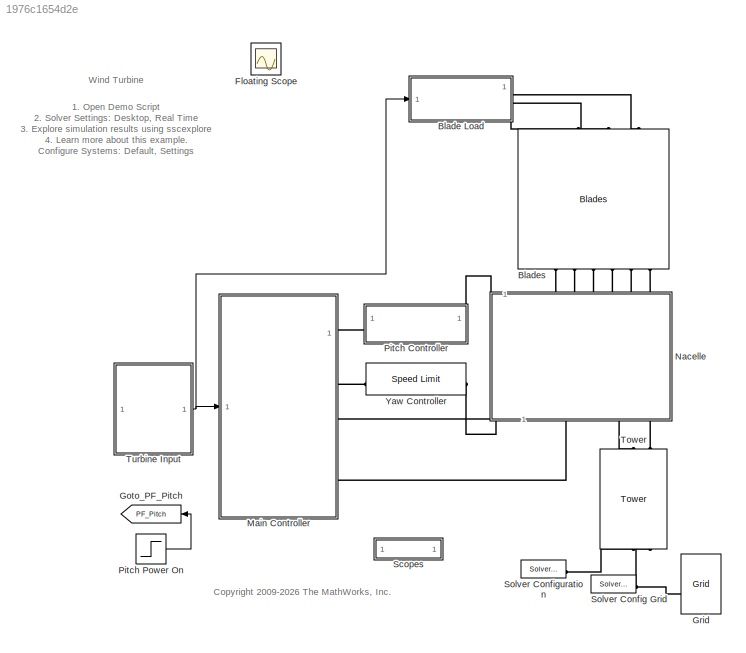
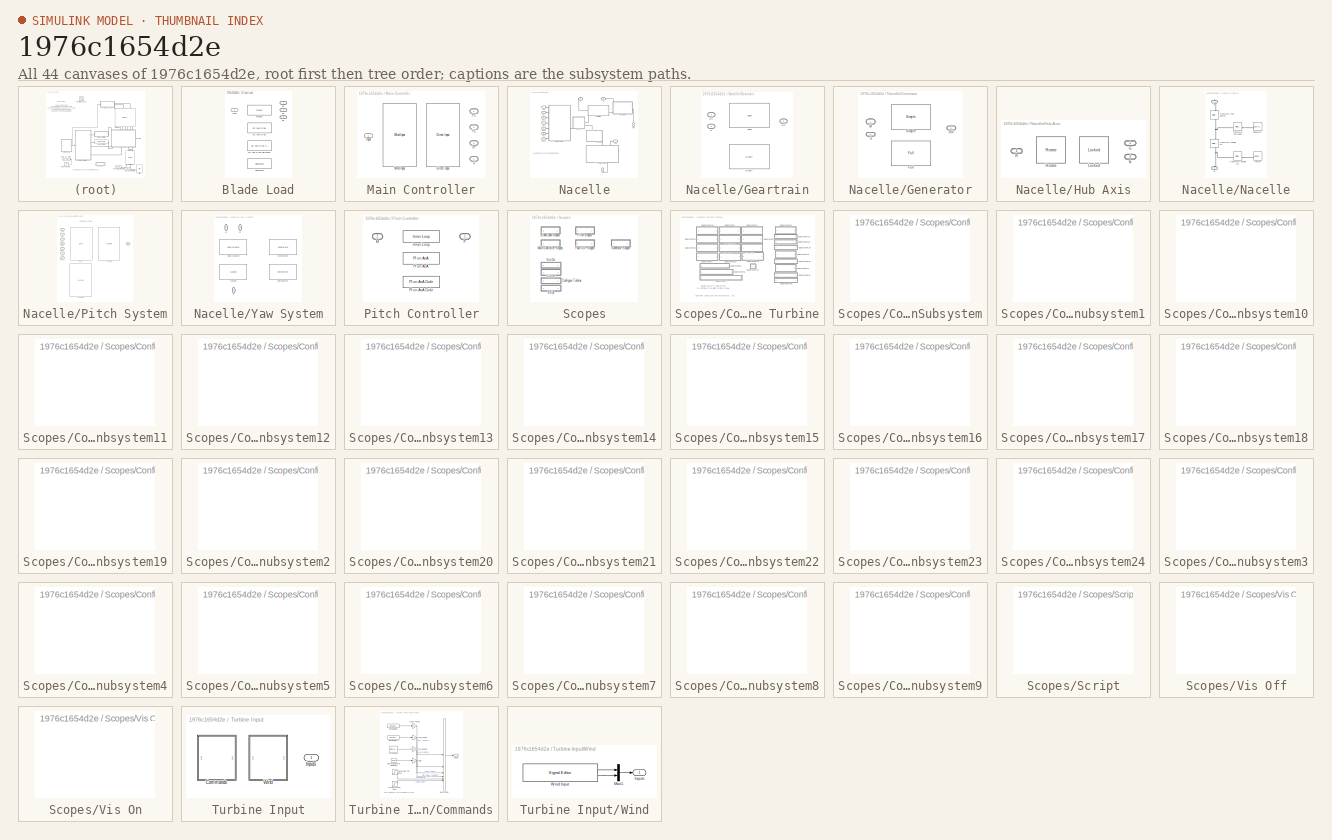
[diagram: thumbnail index - all 44 canvases of the model, root first then tree order]
MODEL slx_1976c1654d2e
KIND model
CONFIG AbsTol = 1e-4
CONFIG EnableMultiTasking = on
CONFIG MaxStep = 0.01
CONFIG PostLoadFcn = warning off Simulink:blocks:MatchingGotoNotFound\nwarning off Simulink:blocks:MatchingFromNotFound\nwarning('off','Simulink:SL_OutputNotConnected');\nwarning off Simulink:Engine:SaveWithParameterizedLinks_Warning\nwarning off Simulink:Engine:SaveWithDisabledLinks_Warning\nwarning('off','Simulink:fixpoint:fxpParameterPrecisionLoss');\nwarning off Simulink:blocks:DTConversionUncessary\nwarning off ne_sli:s...<+245ch>
CONFIG PreLoadFcn = warning off Simulink:Commands:LoadMdlParameterizedLink
CONFIG RelTol = 1e-4
CONFIG SolverName = ode23t
CONFIG StartFcn = tic
CONFIG StopFcn = Elapsed_Sim_Time = toc;\ndisp(['Elapsed time is ' num2str(Elapsed_Sim_Time)]);
CONFIG StopTime = 70
BLOCK [SubSystem] Blade Load
  AttributesFormatString = %<ActiveVariant>
  LabelModeActiveChoice = Lift_and_Drag
  Variant = on
  VariantControlMode = label
BLOCK [PMIOPort] Blade Load/B1
  Port = 3
  Side = Right
BLOCK [PMIOPort] Blade Load/B2
  Port = 2
  Side = Right
BLOCK [PMIOPort] Blade Load/B3
  Side = Right
BLOCK [Inport] Blade Load/Input
BLOCK [Reference] Blade Load/Lift and Drag  REF=Wind_Lib/Lift and Drag
  SourceBlock = Wind_Lib/Lift and Drag
BLOCK [Reference] Blade Load/Lift and Drag Simscape  REF=Wind_Lib/Lift and Drag Simscape
  SourceBlock = Wind_Lib/Lift and Drag Simscape
BLOCK [Reference] Blade Load/Segments  REF=Wind_Lib/Segments
  SourceBlock = Wind_Lib/Segments
BLOCK [Reference] Blade Load/Torque  REF=Wind_Lib/Torque
  SourceBlock = Wind_Lib/Torque
BLOCK [Reference] Blades  REF=Blades_Lib/Blades
  NameLocation = right
  SourceBlock = Blades_Lib/Blades
BLOCK [Scope] Floating Scope
  DataLoggingDecimateData = on
  DataLoggingDecimation = 1
  DataLoggingLimitDataPoints = on
  DataLoggingSaveFormat = Structure With Time
  Floating = off
  GraphicalSettings = {"GraphicalSettings":{"LegacySettings":true,"Style":{"AxesScalingProperties":{"AutoScaleXAxisLimits":true},"Style":{"AxesColor":"[0 0 0]","ChannelNames":[""],"ColorOrder":"[1 0.909803921568627 0.392156862745098;0.149019607843137 0.549019607843137 0.866666666666667;0.96078431372549 0.466666666666667 0.16078431372549;0.286274509803922 0.858823529411765 0.250980392156863;0.752941176470588 0.360784313...<+486ch>
  IOType = viewer
  NumInputPorts = 1
  WasSavedAsWebScope = on
  WindowPosition = [376 67 324 239]
BLOCK [Goto] Goto_PF_Pitch
  GotoTag = PF_Pitch
  NameLocation = top
  TagVisibility = global
BLOCK [Reference] Grid  REF=Generator_Lib/Grid
  NameLocation = top
  SourceBlock = Generator_Lib/Grid
  SourceType = SubSystem
BLOCK [SubSystem] Main Controller
  AttributesFormatString = %<ActiveVariant>
  LabelModeActiveChoice = Wind_Input
  Variant = on
  VariantControlMode = label
BLOCK [PMIOPort] Main Controller/Br
  Port = 3
  Side = Right
  Tag = PMCPort
BLOCK [Reference] Main Controller/Direct Input  REF=Main_Controller_Lib/Direct Input
  SourceBlock = Main_Controller_Lib/Direct Input
BLOCK [PMIOPort] Main Controller/G
  Port = 4
  Side = Right
  Tag = PMCPort
BLOCK [Inport] Main Controller/Input
BLOCK [PMIOPort] Main Controller/PC
  Side = Right
  Tag = PMCPort
BLOCK [Reference] Main Controller/Wind Input  REF=Main_Controller_Lib/Wind Input
  SourceBlock = Main_Controller_Lib/Wind Input
BLOCK [PMIOPort] Main Controller/YC
  Port = 2
  Side = Right
  Tag = PMCPort
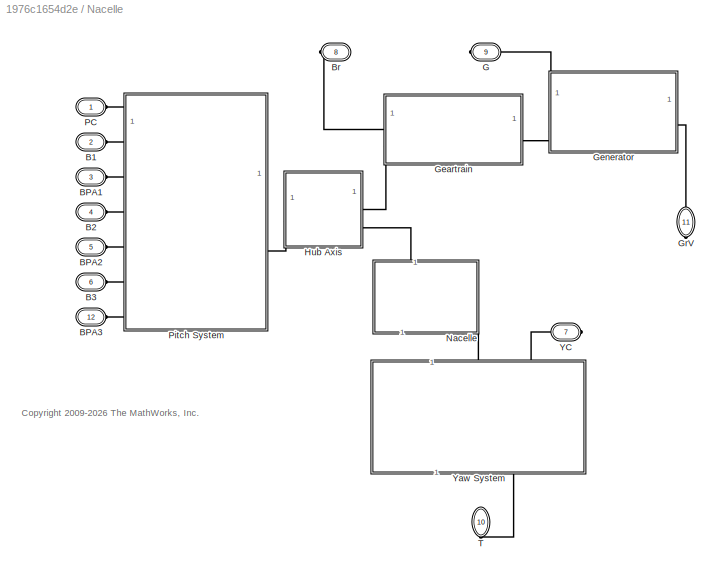
BLOCK [SubSystem] Nacelle
  NameLocation = right
BLOCK [PMIOPort] Nacelle/B1
  Port = 2
  Side = Left
  Tag = PMCPort
BLOCK [PMIOPort] Nacelle/B2
  Port = 4
  Side = Left
  Tag = PMCPort
BLOCK [PMIOPort] Nacelle/B3
  Port = 6
  Side = Left
  Tag = PMCPort
BLOCK [PMIOPort] Nacelle/BPA1
  Port = 3
  Side = Left
  Tag = PMCPort
BLOCK [PMIOPort] Nacelle/BPA2
  Port = 5
  Side = Left
  Tag = PMCPort
BLOCK [PMIOPort] Nacelle/BPA3
  Port = 12
  Side = Left
  Tag = PMCPort
BLOCK [PMIOPort] Nacelle/Br
  Port = 8
  Side = Right
  Tag = PMCPort
BLOCK [PMIOPort] Nacelle/G
  Port = 9
  Side = Right
  Tag = PMCPort
BLOCK [SubSystem] Nacelle/Geartrain
  AttributesFormatString = %<ActiveVariant>
  LabelModeActiveChoice = Ideal
  Variant = on
  VariantControlMode = label
BLOCK [PMIOPort] Nacelle/Geartrain/BC
  Side = Left
  Tag = PMCPort
BLOCK [Reference] Nacelle/Geartrain/Empty  REF=Geartrain_Lib/Empty
  SourceBlock = Geartrain_Lib/Empty
BLOCK [PMIOPort] Nacelle/Geartrain/GN
  Port = 3
  Side = Right
  Tag = PMCPort
BLOCK [Reference] Nacelle/Geartrain/Ideal  REF=Geartrain_Lib/Ideal
  SourceBlock = Geartrain_Lib/Ideal
BLOCK [PMIOPort] Nacelle/Geartrain/R
  Port = 2
  Side = Left
  Tag = PMCPort
BLOCK [SubSystem] Nacelle/Generator
  AttributesFormatString = %<ActiveVariant>
  LabelModeActiveChoice = Full
  Variant = on
  VariantControlMode = label
BLOCK [Reference] Nacelle/Generator/Full  REF=Generator_Lib/Full
  SourceBlock = Generator_Lib/Full
BLOCK [PMIOPort] Nacelle/Generator/G
  Port = 2
  Side = Left
BLOCK [PMIOPort] Nacelle/Generator/GrV
  Port = 3
  Side = Right
BLOCK [PMIOPort] Nacelle/Generator/M
  NameLocation = top
  Side = Left
  Tag = PMCPort
BLOCK [Reference] Nacelle/Generator/Simple  REF=Generator_Lib/Simple
  SourceBlock = Generator_Lib/Simple
BLOCK [PMIOPort] Nacelle/GrV
  NameLocation = left
  Port = 11
  Side = Right
  Tag = PMCPort
BLOCK [SubSystem] Nacelle/Hub Axis
  AttributesFormatString = %<ActiveVariant>
  LabelModeActiveChoice = Rotate
  Tag = CustomStyle
  Variant = on
  VariantControlMode = label
BLOCK [PMIOPort] Nacelle/Hub Axis/G
  Side = Right
BLOCK [Reference] Nacelle/Hub Axis/Locked  REF=Hub_Axis_Lib/Locked
  SourceBlock = Hub_Axis_Lib/Locked
BLOCK [PMIOPort] Nacelle/Hub Axis/N
  Port = 3
  Side = Right
BLOCK [PMIOPort] Nacelle/Hub Axis/R
  Port = 2
  Side = Left
BLOCK [Reference] Nacelle/Hub Axis/Rotate  REF=Hub_Axis_Lib/Rotate
  SourceBlock = Hub_Axis_Lib/Rotate
BLOCK [SubSystem] Nacelle/Nacelle
  NameLocation = right
BLOCK [Reference] Nacelle/Nacelle/Geometry  REF=sm_lib/Body Elements/Extruded Solid
  SourceBlock = sm_lib/Body Elements/Extruded Solid
  SourceType = Extruded Solid
BLOCK [Reference] Nacelle/Nacelle/Inertia  REF=sm_lib/Body Elements/Spherical Solid
  SourceBlock = sm_lib/Body Elements/Spherical Solid
  SourceType = Spherical Solid
BLOCK [PMIOPort] Nacelle/Nacelle/N
  NameLocation = right
  Side = Right
BLOCK [Reference] Nacelle/Nacelle/Transform Extrusion  REF=sm_lib/Frames and
Transforms/Rigid
Transform
  SourceBlock = sm_lib/Frames and\nTransforms/Rigid\nTransform
  SourceType = Rigid\nTransform
BLOCK [Reference] Nacelle/Nacelle/Transform Hub Center  REF=sm_lib/Frames and
Transforms/Rigid
Transform
  NameLocation = right
  SourceBlock = sm_lib/Frames and\nTransforms/Rigid\nTransform
  SourceType = Rigid\nTransform
BLOCK [Reference] Nacelle/Nacelle/Transform Nacelle CG  REF=sm_lib/Frames and
Transforms/Rigid
Transform
  SourceBlock = sm_lib/Frames and\nTransforms/Rigid\nTransform
  SourceType = Rigid\nTransform
BLOCK [Reference] Nacelle/Nacelle/Transform Nacelle Ctr  REF=sm_lib/Frames and
Transforms/Rigid
Transform
  NameLocation = right
  SourceBlock = sm_lib/Frames and\nTransforms/Rigid\nTransform
  SourceType = Rigid\nTransform
BLOCK [PMIOPort] Nacelle/Nacelle/YR
  NameLocation = right
  Port = 2
  Side = Left
BLOCK [PMIOPort] Nacelle/PC
  Side = Left
  Tag = PMCPort
BLOCK [SubSystem] Nacelle/Pitch System
  AttributesFormatString = %<ActiveVariant>
  LabelModeActiveChoice = Ideal
  Tag = CustomStyle
  Variant = on
  VariantControlMode = label
BLOCK [PMIOPort] Nacelle/Pitch System/B1
  Port = 2
  Side = Left
  Tag = PMCPort
BLOCK [PMIOPort] Nacelle/Pitch System/B2
  Port = 4
  Side = Left
  Tag = PMCPort
BLOCK [PMIOPort] Nacelle/Pitch System/B3
  Port = 6
  Side = Left
  Tag = PMCPort
BLOCK [PMIOPort] Nacelle/Pitch System/BPA1
  Port = 3
  Side = Left
  Tag = PMCPort
BLOCK [PMIOPort] Nacelle/Pitch System/BPA2
  Port = 5
  Side = Left
  Tag = PMCPort
BLOCK [PMIOPort] Nacelle/Pitch System/BPA3
  Port = 8
  Side = Left
  Tag = PMCPort
BLOCK [Reference] Nacelle/Pitch System/Hydraulic  REF=Pitch_System_Lib/Hydraulic
  SourceBlock = Pitch_System_Lib/Hydraulic
BLOCK [Reference] Nacelle/Pitch System/Ideal  REF=Pitch_System_Lib/Ideal
  SourceBlock = Pitch_System_Lib/Ideal
BLOCK [Reference] Nacelle/Pitch System/Locked  REF=Pitch_System_Lib/Locked
  SourceBlock = Pitch_System_Lib/Locked
BLOCK [PMIOPort] Nacelle/Pitch System/N
  Port = 7
  Side = Right
  Tag = PMCPort
BLOCK [PMIOPort] Nacelle/Pitch System/PC
  Side = Left
  Tag = PMCPort
BLOCK [PMIOPort] Nacelle/T
  NameLocation = right
  Port = 10
  Side = Right
  Tag = PMCPort
BLOCK [PMIOPort] Nacelle/YC
  NameLocation = top
  Port = 7
  Side = Right
  Tag = PMCPort
BLOCK [SubSystem] Nacelle/Yaw System
  AttributesFormatString = %<ActiveVariant>
  LabelModeActiveChoice = Ideal_Actuator
  NameLocation = right
  Tag = CustomStyle
  Variant = on
  VariantControlMode = label
BLOCK [Reference] Nacelle/Yaw System/Ideal Actuator  REF=Yaw_System_Lib/Ideal Actuator
  NameLocation = right
  SourceBlock = Yaw_System_Lib/Ideal Actuator
BLOCK [Reference] Nacelle/Yaw System/Ideal Motor  REF=Yaw_System_Lib/Ideal Motor
  NameLocation = right
  SourceBlock = Yaw_System_Lib/Ideal Motor
BLOCK [Reference] Nacelle/Yaw System/Locked  REF=Yaw_System_Lib/Locked
  NameLocation = right
  SourceBlock = Yaw_System_Lib/Locked
BLOCK [PMIOPort] Nacelle/Yaw System/N
  NameLocation = right
  Side = Right
BLOCK [Reference] Nacelle/Yaw System/Servomotor  REF=Yaw_System_Lib/Servomotor
  NameLocation = right
  SourceBlock = Yaw_System_Lib/Servomotor
BLOCK [PMIOPort] Nacelle/Yaw System/T
  NameLocation = left
  Port = 2
  Side = Left
BLOCK [PMIOPort] Nacelle/Yaw System/YC
  NameLocation = left
  Port = 3
  Side = Right
BLOCK [SubSystem] Pitch Controller
  AttributesFormatString = %<ActiveVariant>
  LabelModeActiveChoice = PI_on_AoA
  Variant = on
  VariantControlMode = label
BLOCK [Reference] Pitch Controller/Inner Loop  REF=Pitch_Controller_Lib/Inner Loop
  SourceBlock = Pitch_Controller_Lib/Inner Loop
BLOCK [PMIOPort] Pitch Controller/M
  Port = 2
  Side = Left
  Tag = PMCPort
BLOCK [PMIOPort] Pitch Controller/P
  Side = Right
  Tag = PMCPort
BLOCK [Reference] Pitch Controller/PI on AoA  REF=Pitch_Controller_Lib/PI on AoA
  SourceBlock = Pitch_Controller_Lib/PI on AoA
BLOCK [Reference] Pitch Controller/PI on AoA Code  REF=Pitch_Controller_Lib/PI on AoA Code
  SourceBlock = Pitch_Controller_Lib/PI on AoA Code
BLOCK [Step] Pitch Power On
  FinalValue = 24
  InitialValue = 24
  SampleTime = 0
  Time = 20
BLOCK [SubSystem] Scopes
BLOCK [SubSystem] Scopes/Blade Load Scopes
  ReferencedSubsystem = Blade_Load_Scopes
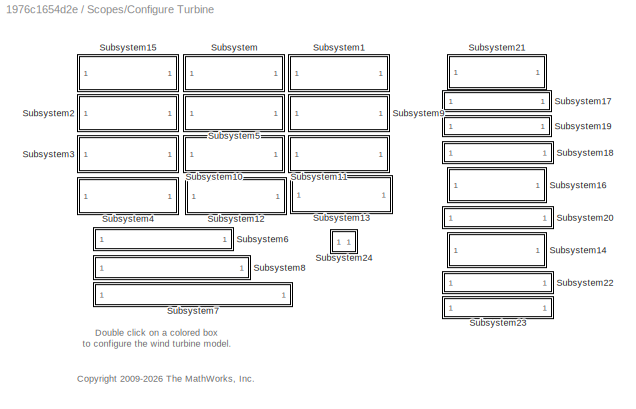
BLOCK [SubSystem] Scopes/Configure Turbine
BLOCK [SubSystem] Scopes/Configure Turbine/Subsystem
  OpenFcn = Select_Turbine_Systems('I_Pitch Test', WT_Configs)
BLOCK [SubSystem] Scopes/Configure Turbine/Subsystem1
  OpenFcn = Select_Turbine_Systems('H_Pitch Test', WT_Configs)
BLOCK [SubSystem] Scopes/Configure Turbine/Subsystem10
  OpenFcn = Select_Turbine_Systems('I_Pitch IM_Yaw Test', WT_Configs)
BLOCK [SubSystem] Scopes/Configure Turbine/Subsystem11
  OpenFcn = Select_Turbine_Systems('H_Pitch IM_Yaw Test', WT_Configs)
BLOCK [SubSystem] Scopes/Configure Turbine/Subsystem12
  OpenFcn = Select_Turbine_Systems('I_Pitch S_Yaw Test', WT_Configs)
BLOCK [SubSystem] Scopes/Configure Turbine/Subsystem13
  OpenFcn = Select_Turbine_Systems('H_Pitch S_Yaw Test', WT_Configs)
BLOCK [SubSystem] Scopes/Configure Turbine/Subsystem14
  OpenFcn = Compare_Yaw_Actuators;
BLOCK [SubSystem] Scopes/Configure Turbine/Subsystem15
BLOCK [SubSystem] Scopes/Configure Turbine/Subsystem16
  OpenFcn = Compare_Pitch_Actuators;
BLOCK [SubSystem] Scopes/Configure Turbine/Subsystem17
  OpenFcn = Pitch_Actuation_Linkage
BLOCK [SubSystem] Scopes/Configure Turbine/Subsystem18
  OpenFcn = Pitch_Actuation_Hydraulic_Testrig
BLOCK [SubSystem] Scopes/Configure Turbine/Subsystem19
  OpenFcn = Pitch_Control_Ideal_Testrig
BLOCK [SubSystem] Scopes/Configure Turbine/Subsystem2
  OpenFcn = Select_Turbine_Systems('IA_Yaw Test', WT_Configs)
BLOCK [SubSystem] Scopes/Configure Turbine/Subsystem20
  OpenFcn = Yaw_Actuation_Testrig
BLOCK [SubSystem] Scopes/Configure Turbine/Subsystem21
BLOCK [SubSystem] Scopes/Configure Turbine/Subsystem22
  OpenFcn = Generator_Testrig
BLOCK [SubSystem] Scopes/Configure Turbine/Subsystem23
  OpenFcn = Turbine_State_Machine_Testrig
BLOCK [SubSystem] Scopes/Configure Turbine/Subsystem24
  OpenFcn = Select_Turbine_Systems('H_Pitch S_Yaw Ge Gn Lift_Drag', WT_Configs)
BLOCK [SubSystem] Scopes/Configure Turbine/Subsystem3
  OpenFcn = Select_Turbine_Systems('IM_Yaw Test', WT_Configs)
BLOCK [SubSystem] Scopes/Configure Turbine/Subsystem4
  OpenFcn = Select_Turbine_Systems('S_Yaw Test', WT_Configs)
BLOCK [SubSystem] Scopes/Configure Turbine/Subsystem5
  OpenFcn = Select_Turbine_Systems('I_Pitch IA_Yaw Test', WT_Configs)
BLOCK [SubSystem] Scopes/Configure Turbine/Subsystem6
  OpenFcn = Select_Turbine_Systems('I_Pitch IA_Yaw Lift_Drag', WT_Configs)
BLOCK [SubSystem] Scopes/Configure Turbine/Subsystem7
  OpenFcn = Select_Turbine_Systems('I_Pitch IA_Yaw Ge Gn Lift_Drag', WT_Configs)
BLOCK [SubSystem] Scopes/Configure Turbine/Subsystem8
  OpenFcn = Select_Turbine_Systems('I_Pitch IA_Yaw Ge Lift_Drag', WT_Configs)
BLOCK [SubSystem] Scopes/Configure Turbine/Subsystem9
  OpenFcn = Select_Turbine_Systems('H_Pitch IA_Yaw Test', WT_Configs)
BLOCK [SubSystem] Scopes/Generator Scopes
  ReferencedSubsystem = Generator_Scopes
BLOCK [SubSystem] Scopes/Main Controller Scopes
  ReferencedSubsystem = Main_Controller_Scopes
BLOCK [SubSystem] Scopes/Pitch Scopes
  ReferencedSubsystem = Pitch_Scopes
BLOCK [SubSystem] Scopes/Script
  OpenFcn = open('Wind_Turbine_Demo_Script.html')
BLOCK [SubSystem] Scopes/Vis Off
  OpenFcn = set_param(bdroot,'SimMechanicsOpenEditorOnUpdate','off');
BLOCK [SubSystem] Scopes/Vis On
  OpenFcn = set_param(bdroot,'SimMechanicsOpenEditorOnUpdate','on');
BLOCK [SubSystem] Scopes/Yaw Ctrl Scopes
  ReferencedSubsystem = Yaw_Scopes
BLOCK [Reference] Solver Config Grid  REF=nesl_utility/Solver
Configuration
  SourceBlock = nesl_utility/Solver\nConfiguration
  SourceType = Solver\nConfiguration
BLOCK [Reference] Solver Configuration  REF=nesl_utility/Solver
Configuration
  SourceBlock = nesl_utility/Solver\nConfiguration
  SourceType = Solver\nConfiguration
BLOCK [Reference] Tower  REF=Tower/Tower
  NameLocation = right
  SourceBlock = Tower/Tower
BLOCK [SubSystem] Turbine Input
  AttributesFormatString = %<ActiveVariant>
  LabelModeActiveChoice = Wind
  Variant = on
  VariantControlMode = label
BLOCK [SubSystem] Turbine Input/Commands
  VariantControl = Commands
BLOCK [BusCreator] Turbine Input/Commands/Bus Creator
  DisplayOption = bar
  InheritFromInputs = on
  Inputs = 6
BLOCK [Gain] Turbine Input/Commands/Gain1
BLOCK [Step] Turbine Input/Commands/Generator Trip Input
  InitialValue = 1
  SampleTime = 0
  Time = 90
BLOCK [Outport] Turbine Input/Commands/Inputs
  VectorParamsAs1DForOutWhenUnconnected = off
BLOCK [Reference] Turbine Input/Commands/Mechanical Brake Command  REF=simulink/Sources/Ramp
  SourceBlock = simulink/Sources/Ramp
  SourceType = Ramp
BLOCK [Step] Turbine Input/Commands/Parking_Brake_Input
  FinalValue = 0
  InitialValue = 1
  SampleTime = 0
  Time = 5
BLOCK [Gain] Turbine Input/Commands/Scalar2Vector
  Gain = [1 1 1]
BLOCK [Reference] Turbine Input/Commands/Signal Builder  REF=SignalEditorBlockLib/Signal Editor
  LibrarySourceBlock = simulink/Sources/Signal Editor
  SourceBlock = SignalEditorBlockLib/Signal Editor
  SourceType = SignalEditor
  UserDataPersistent = on
BLOCK [Reference] Turbine Input/Commands/Signal Builder2  REF=SignalEditorBlockLib/Signal Editor
  LibrarySourceBlock = simulink/Sources/Signal Editor
  SourceBlock = SignalEditorBlockLib/Signal Editor
  SourceType = SignalEditor
  UserDataPersistent = on
BLOCK [Gain] Turbine Input/Commands/Torque Gain
  Gain = 120000*1.23
BLOCK [DiscretePulseGenerator] Turbine Input/Commands/Torque Input
  Amplitude = 10
  Period = 100
  PulseType = Time based
  PulseWidth = 10
BLOCK [Gain] Turbine Input/Commands/Yaw_Shutoff
BLOCK [Outport] Turbine Input/Inputs
  VectorParamsAs1DForOutWhenUnconnected = off
BLOCK [SubSystem] Turbine Input/Wind
  VariantControl = Wind
BLOCK [Outport] Turbine Input/Wind/Inputs
  VectorParamsAs1DForOutWhenUnconnected = off
BLOCK [Mux] Turbine Input/Wind/Mux1
  DisplayOption = bar
  Inputs = 2
BLOCK [Reference] Turbine Input/Wind/Wind Input  REF=SignalEditorBlockLib/Signal Editor
  LibrarySourceBlock = simulink/Sources/Signal Editor
  SourceBlock = SignalEditorBlockLib/Signal Editor
  SourceType = SignalEditor
  UserDataPersistent = on
BLOCK [Reference] Yaw Controller  REF=Yaw_Controller_Lib/Speed Limit
  SourceBlock = Yaw_Controller_Lib/Speed Limit
ANNOTATION (root): 1. Open Demo Script 2. Solver Settings: Desktop , Real Time 3. Explore simulation results using sscexplore 4. Learn more about this example. Configure Systems: Default , Settings
ANNOTATION (root): <copyright redacted>
ANNOTATION (root): Wind Turbine
ANNOTATION Nacelle: <copyright redacted>
ANNOTATION Nacelle/Pitch System: Variant Subsystems
ANNOTATION Scopes/Configure Turbine: <copyright redacted>
ANNOTATION Scopes/Configure Turbine: Double click on a colored box to configure the wind turbine model.
ANNOTATION Turbine Input/Commands: <copyright redacted>
LINE Pitch Power On:1 -> Goto_PF_Pitch:1
LINE Turbine Input/Commands/Bus Creator:1 -> Turbine Input/Commands/Inputs:1
LINE Turbine Input/Commands/Gain1:1 -> Turbine Input/Commands/Bus Creator:4
LINE Turbine Input/Commands/Generator Trip Input:1 -> Turbine Input/Commands/Bus Creator:5
LINE Turbine Input/Commands/Mechanical Brake Command:1 -> Turbine Input/Commands/Gain1:1
LINE Turbine Input/Commands/Parking_Brake_Input:1 -> Turbine Input/Commands/Bus Creator:6
LINE Turbine Input/Commands/Scalar2Vector:1 -> Turbine Input/Commands/Bus Creator:1
LINE Turbine Input/Commands/Signal Builder2:1 -> Turbine Input/Commands/Yaw_Shutoff:1
LINE Turbine Input/Commands/Signal Builder:1 -> Turbine Input/Commands/Scalar2Vector:1
LINE Turbine Input/Commands/Torque Gain:1 -> Turbine Input/Commands/Bus Creator:3
LINE Turbine Input/Commands/Torque Input:1 -> Turbine Input/Commands/Torque Gain:1
LINE Turbine Input/Commands/Yaw_Shutoff:1 -> Turbine Input/Commands/Bus Creator:2
LINE Turbine Input/Wind/Mux1:1 -> Turbine Input/Wind/Inputs:1
LINE Turbine Input/Wind/Wind Input:1 -> Turbine Input/Wind/Mux1:1
LINE Turbine Input/Wind/Wind Input:2 -> Turbine Input/Wind/Mux1:2
NET Turbine Input:1 -> Blade Load:1, Main Controller:1
PLINE Blade Load:RConn1 -- Blades:RConn3
PLINE Blade Load:RConn2 -- Blades:RConn2
PLINE Blade Load:RConn3 -- Blades:RConn1
PLINE Blades:LConn1 -- Nacelle:LConn2
PLINE Blades:LConn2 -- Nacelle:LConn3
PLINE Blades:LConn3 -- Nacelle:LConn4
PLINE Blades:LConn4 -- Nacelle:LConn5
PLINE Blades:LConn5 -- Nacelle:LConn6
PLINE Blades:LConn6 -- Nacelle:LConn7
PNET net1: Grid:RConn1 -- Solver Config Grid:RConn1 -- Tower:RConn2
PLINE Main Controller:RConn1 -- Pitch Controller:LConn1
PLINE Main Controller:RConn2 -- Yaw Controller:LConn1
PLINE Main Controller:RConn3 -- Nacelle:RConn2
PLINE Main Controller:RConn4 -- Nacelle:RConn3
PLINE Nacelle/B1:RConn1 -- Nacelle/Pitch System:LConn2
PLINE Nacelle/B2:RConn1 -- Nacelle/Pitch System:LConn4
PLINE Nacelle/B3:RConn1 -- Nacelle/Pitch System:LConn6
PLINE Nacelle/BPA1:RConn1 -- Nacelle/Pitch System:LConn3
PLINE Nacelle/BPA2:RConn1 -- Nacelle/Pitch System:LConn5
PLINE Nacelle/BPA3:RConn1 -- Nacelle/Pitch System:LConn7
PLINE Nacelle/Br:RConn1 -- Nacelle/Geartrain:LConn1
PLINE Nacelle/G:RConn1 -- Nacelle/Generator:LConn1
PLINE Nacelle/Geartrain:LConn2 -- Nacelle/Hub Axis:RConn1
PLINE Nacelle/Geartrain:RConn1 -- Nacelle/Generator:LConn2
PLINE Nacelle/Generator:RConn1 -- Nacelle/GrV:RConn1
PLINE Nacelle/Hub Axis:LConn1 -- Nacelle/Pitch System:RConn1
PLINE Nacelle/Hub Axis:RConn2 -- Nacelle/Nacelle:RConn1
PLINE Nacelle/Nacelle/Geometry:RConn1 -- Nacelle/Nacelle/Transform Extrusion:RConn1
PLINE Nacelle/Nacelle/Inertia:RConn1 -- Nacelle/Nacelle/Transform Nacelle CG:RConn1
PLINE Nacelle/Nacelle/N:RConn1 -- Nacelle/Nacelle/Transform Hub Center:RConn1
PNET net2: Nacelle/Nacelle/Transform Extrusion:LConn1 -- Nacelle/Nacelle/Transform Hub Center:LConn1 -- Nacelle/Nacelle/Transform Nacelle Ctr:RConn1
PNET net3: Nacelle/Nacelle/Transform Nacelle CG:LConn1 -- Nacelle/Nacelle/Transform Nacelle Ctr:LConn1 -- Nacelle/Nacelle/YR:RConn1
PLINE Nacelle/Nacelle:LConn1 -- Nacelle/Yaw System:RConn1
PLINE Nacelle/PC:RConn1 -- Nacelle/Pitch System:LConn1
PLINE Nacelle/T:RConn1 -- Nacelle/Yaw System:LConn1
PLINE Nacelle/YC:RConn1 -- Nacelle/Yaw System:RConn2
PLINE Nacelle:LConn1 -- Pitch Controller:RConn1
PLINE Nacelle:RConn1 -- Yaw Controller:RConn1
PLINE Nacelle:RConn4 -- Tower:LConn1
PLINE Nacelle:RConn5 -- Tower:LConn2
PLINE Solver Configuration:RConn1 -- Tower:RConn1
note: NET lines group one-source signal fan-out (src -> all destinations, sorted); 1:1 wires keep LINE; PNET lines group multi-terminal physical nets as a canonical sorted terminal list (undirected conserving connections); 2-terminal nets keep the pairwise PLINE form
